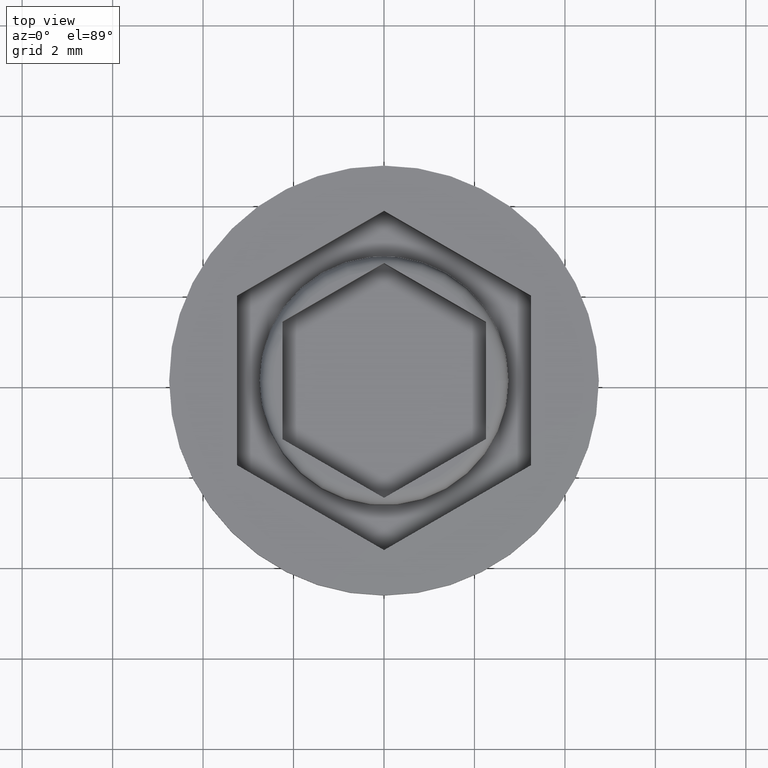
[diagram: clean part render]
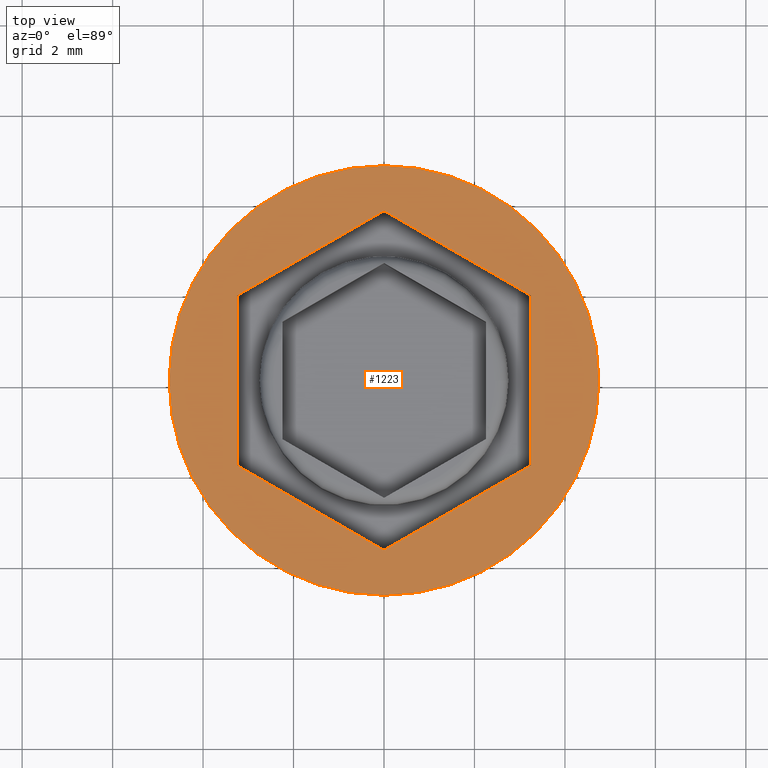
[diagram: same view with one face highlighted and labeled with its STEP entity id]
A machine part, top view. The second image highlights one B-rep face of the part: STEP entity #1223.
In plain terms, the highlighted planar face has unit normal (0, -0, 1).
Its self-contained STEP definition (entity closure, byte-faithful):
#41 = ORIENTED_EDGE ( 'NONE', *, *, #1614, .T. ) ;
#50 = VERTEX_POINT ( 'NONE', #644 ) ;
#54 = AXIS2_PLACEMENT_3D ( 'NONE', #1319, #531, #229 ) ;
#81 = CARTESIAN_POINT ( 'NONE',  ( 3.249999999999999556, 0.000000000000000000, 0.000000000000000000 ) ) ;
#92 = VECTOR ( 'NONE', #1631, 1000.000000000000000 ) ;
#107 = VERTEX_POINT ( 'NONE', #389 ) ;
#168 = CARTESIAN_POINT ( 'NONE',  ( 0.000000000000000000, -3.752776749732567030, 0.000000000000000000 ) ) ;
#183 = AXIS2_PLACEMENT_3D ( 'NONE', #701, #747, #1222 ) ;
#194 = CARTESIAN_POINT ( 'NONE',  ( 4.750000000000000000, 0.000000000000000000, 0.000000000000000000 ) ) ;
#196 = LINE ( 'NONE', #827, #92 ) ;
#229 = DIRECTION ( 'NONE',  ( 1.000000000000000000, 0.000000000000000000, 0.000000000000000000 ) ) ;
#294 = CARTESIAN_POINT ( 'NONE',  ( -1.625000000000000444, 2.814582562299424939, 0.000000000000000000 ) ) ;
#389 = CARTESIAN_POINT ( 'NONE',  ( -4.750000000000000000, 5.817072295949927426E-16, 0.000000000000000000 ) ) ;
#424 = VECTOR ( 'NONE', #526, 1000.000000000000000 ) ;
#445 = ORIENTED_EDGE ( 'NONE', *, *, #732, .F. ) ;
#456 = EDGE_CURVE ( 'NONE', #1151, #107, #1177, .T. ) ;
#471 = DIRECTION ( 'NONE',  ( -0.8660254037844384856, -0.5000000000000002220, 0.000000000000000000 ) ) ;
#501 = EDGE_CURVE ( 'NONE', #1283, #830, #1238, .T. ) ;
#526 = DIRECTION ( 'NONE',  ( 0.000000000000000000, 1.000000000000000000, -0.000000000000000000 ) ) ;
#531 = DIRECTION ( 'NONE',  ( -0.000000000000000000, -0.000000000000000000, 1.000000000000000000 ) ) ;
#574 = LINE ( 'NONE', #1671, #611 ) ;
#576 = VERTEX_POINT ( 'NONE', #1099 ) ;
#578 = LINE ( 'NONE', #1852, #1179 ) ;
#594 = DIRECTION ( 'NONE',  ( -0.8660254037844387076, 0.4999999999999998890, 0.000000000000000000 ) ) ;
#611 = VECTOR ( 'NONE', #594, 1000.000000000000114 ) ;
#616 = EDGE_CURVE ( 'NONE', #576, #1759, #1440, .T. ) ;
#625 = EDGE_CURVE ( 'NONE', #698, #50, #1491, .T. ) ;
#644 = CARTESIAN_POINT ( 'NONE',  ( 3.249999999999999556, 1.876388374866283515, 0.000000000000000000 ) ) ;
#698 = VERTEX_POINT ( 'NONE', #1006 ) ;
#701 = CARTESIAN_POINT ( 'NONE',  ( 0.000000000000000000, 0.000000000000000000, 0.000000000000000000 ) ) ;
#728 = DIRECTION ( 'NONE',  ( -0.000000000000000000, -0.000000000000000000, 1.000000000000000000 ) ) ;
#730 = ORIENTED_EDGE ( 'NONE', *, *, #1581, .F. ) ;
#732 = EDGE_CURVE ( 'NONE', #1759, #698, #196, .T. ) ;
#747 = DIRECTION ( 'NONE',  ( 0.000000000000000000, -0.000000000000000000, 1.000000000000000000 ) ) ;
#827 = CARTESIAN_POINT ( 'NONE',  ( 1.625000000000000222, -2.814582562299424939, 0.000000000000000000 ) ) ;
#830 = VERTEX_POINT ( 'NONE', #1035 ) ;
#845 = VECTOR ( 'NONE', #471, 1000.000000000000114 ) ;
#886 = CIRCLE ( 'NONE', #1148, 4.750000000000000000 ) ;
#890 = CARTESIAN_POINT ( 'NONE',  ( 0.000000000000000000, 0.000000000000000000, 0.000000000000000000 ) ) ;
#891 = EDGE_CURVE ( 'NONE', #830, #576, #578, .T. ) ;
#1006 = CARTESIAN_POINT ( 'NONE',  ( 3.249999999999999556, -1.876388374866283071, 0.000000000000000000 ) ) ;
#1022 = CARTESIAN_POINT ( 'NONE',  ( -1.624999999999999778, -2.814582562299425827, 0.000000000000000000 ) ) ;
#1035 = CARTESIAN_POINT ( 'NONE',  ( -3.250000000000000000, 1.876388374866282627, 0.000000000000000000 ) ) ;
#1044 = ORIENTED_EDGE ( 'NONE', *, *, #456, .T. ) ;
#1051 = ORIENTED_EDGE ( 'NONE', *, *, #501, .F. ) ;
#1099 = CARTESIAN_POINT ( 'NONE',  ( -3.250000000000000444, -1.876388374866283515, 0.000000000000000000 ) ) ;
#1148 = AXIS2_PLACEMENT_3D ( 'NONE', #890, #728, #1356 ) ;
#1151 = VERTEX_POINT ( 'NONE', #194 ) ;
#1177 = CIRCLE ( 'NONE', #54, 4.750000000000000000 ) ;
#1179 = VECTOR ( 'NONE', #1683, 1000.000000000000000 ) ;
#1193 = ORIENTED_EDGE ( 'NONE', *, *, #891, .F. ) ;
#1222 = DIRECTION ( 'NONE',  ( 1.000000000000000000, 0.000000000000000000, 0.000000000000000000 ) ) ;
#1223 = ADVANCED_FACE ( 'NONE', ( #1994, #1684 ), #1655, .T. ) ;
#1238 = LINE ( 'NONE', #294, #845 ) ;
#1283 = VERTEX_POINT ( 'NONE', #1583 ) ;
#1319 = CARTESIAN_POINT ( 'NONE',  ( 0.000000000000000000, 0.000000000000000000, 0.000000000000000000 ) ) ;
#1356 = DIRECTION ( 'NONE',  ( 1.000000000000000000, 0.000000000000000000, 0.000000000000000000 ) ) ;
#1440 = LINE ( 'NONE', #1022, #1732 ) ;
#1491 = LINE ( 'NONE', #81, #424 ) ;
#1581 = EDGE_CURVE ( 'NONE', #50, #1283, #574, .T. ) ;
#1583 = CARTESIAN_POINT ( 'NONE',  ( 0.000000000000000000, 3.752776749732567474, 0.000000000000000000 ) ) ;
#1592 = DIRECTION ( 'NONE',  ( 0.8660254037844385966, -0.4999999999999998890, 0.000000000000000000 ) ) ;
#1614 = EDGE_CURVE ( 'NONE', #107, #1151, #886, .T. ) ;
#1631 = DIRECTION ( 'NONE',  ( 0.8660254037844385966, 0.5000000000000001110, 0.000000000000000000 ) ) ;
#1655 = PLANE ( 'NONE',  #183 ) ;
#1671 = CARTESIAN_POINT ( 'NONE',  ( 1.624999999999999556, 2.814582562299425827, 0.000000000000000000 ) ) ;
#1682 = EDGE_LOOP ( 'NONE', ( #1966, #445, #1812, #1193, #1051, #730 ) ) ;
#1683 = DIRECTION ( 'NONE',  ( -1.155626614413199824E-16, -1.000000000000000000, 0.000000000000000000 ) ) ;
#1684 = FACE_OUTER_BOUND ( 'NONE', #1686, .T. ) ;
#1686 = EDGE_LOOP ( 'NONE', ( #1044, #41 ) ) ;
#1732 = VECTOR ( 'NONE', #1592, 1000.000000000000227 ) ;
#1759 = VERTEX_POINT ( 'NONE', #168 ) ;
#1812 = ORIENTED_EDGE ( 'NONE', *, *, #616, .F. ) ;
#1852 = CARTESIAN_POINT ( 'NONE',  ( -3.250000000000000000, 3.755786496842899057E-16, 0.000000000000000000 ) ) ;
#1966 = ORIENTED_EDGE ( 'NONE', *, *, #625, .F. ) ;
#1994 = FACE_BOUND ( 'NONE', #1682, .T. ) ;